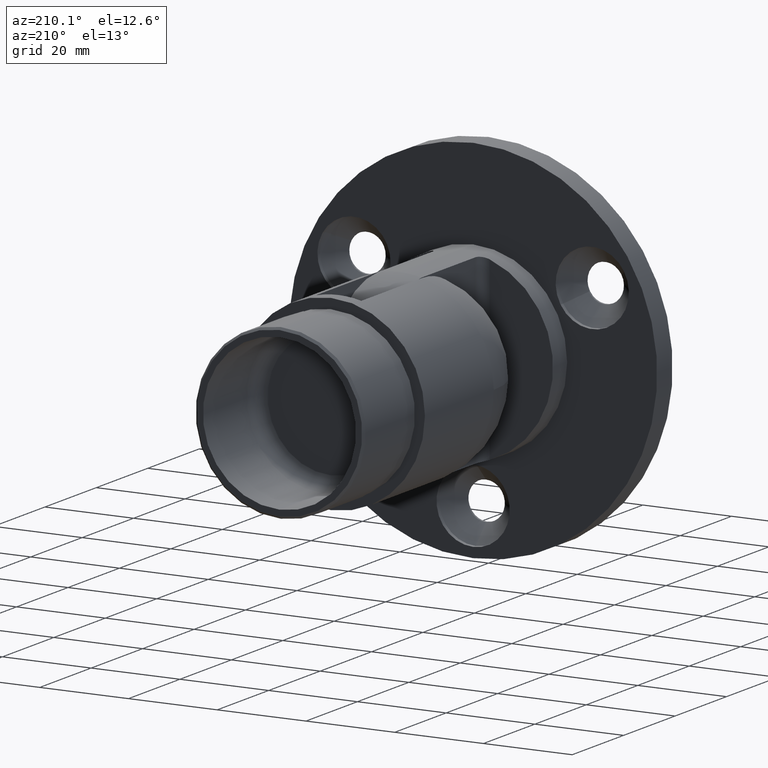
[diagram: clean part render]
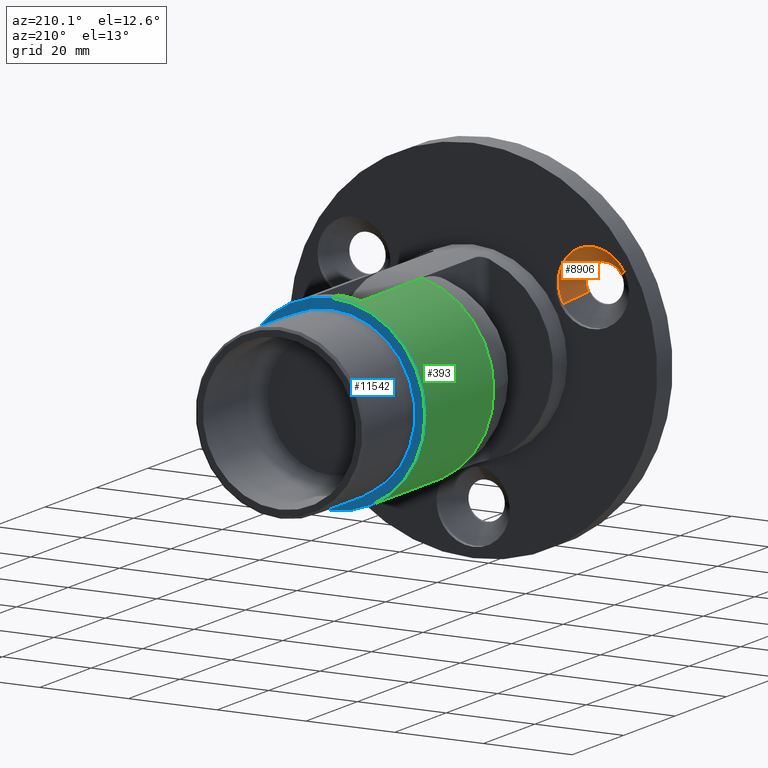
[diagram: same view with three faces highlighted in distinct colors, each labeled with its STEP entity id]
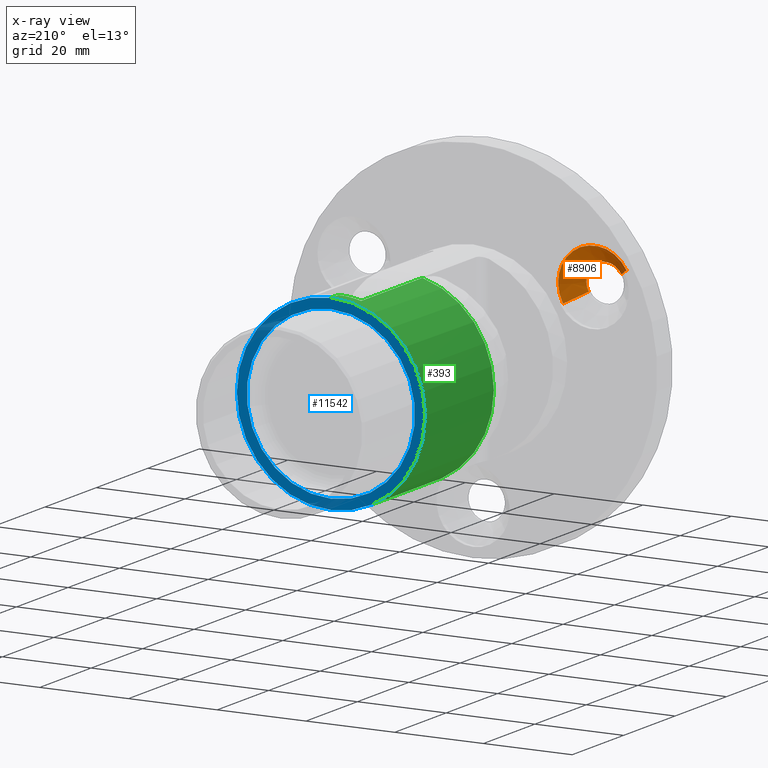
[diagram: x-ray of the same camera — body ghosted, the three highlighted faces saturated]
A machine part, auxiliary view with three faces highlighted in distinct colors.
The next image is the same camera in x-ray (body ghosted, the three faces saturated) — at least one of them is partly hidden behind the body in this view.
Their STEP definitions:

[orange] entity #8906 — the highlighted conical surface has half-angle 45 deg.
#916 = DIRECTION ( 'NONE',  ( 0.000000000000000000, 1.000000000000000000, 0.000000000000000000 ) ) ;
#1327 = CARTESIAN_POINT ( 'NONE',  ( -23.16617955123385997, 0.9999999999999991118, 13.37499999999978506 ) ) ;
#1413 = ORIENTED_EDGE ( 'NONE', *, *, #11286, .F. ) ;
#1791 = LINE ( 'NONE', #16002, #6210 ) ;
#3004 = CARTESIAN_POINT ( 'NONE',  ( -26.84678751731773971, 5.000000000000000000, 15.49999999999974953 ) ) ;
#3200 = AXIS2_PLACEMENT_3D ( 'NONE', #21550, #12831, #7497 ) ;
#4235 = DIRECTION ( 'NONE',  ( 0.8660254037844431485, 0.000000000000000000, -0.4999999999999920064 ) ) ;
#4389 = VERTEX_POINT ( 'NONE', #4603 ) ;
#4603 = CARTESIAN_POINT ( 'NONE',  ( -19.70207793609608515, 5.000000000000000000, 11.37499999999981526 ) ) ;
#5557 = DIRECTION ( 'NONE',  ( 0.6123724356957978010, 0.7071067811865474617, -0.3535533905932681242 ) ) ;
#5809 = AXIS2_PLACEMENT_3D ( 'NONE', #3004, #22034, #15105 ) ;
#6210 = VECTOR ( 'NONE', #8874, 1000.000000000000114 ) ;
#6330 = CARTESIAN_POINT ( 'NONE',  ( -33.99149709853939783, 5.000000000000000000, 19.62499999999968381 ) ) ;
#6861 = EDGE_LOOP ( 'NONE', ( #18527, #8484, #13698, #1413 ) ) ;
#7497 = DIRECTION ( 'NONE',  ( 0.8660254037844431485, 0.000000000000000000, -0.4999999999999920619 ) ) ;
#7640 = CARTESIAN_POINT ( 'NONE',  ( -30.52739548340162301, 0.9999999999999991118, 17.62499999999971223 ) ) ;
#8484 = ORIENTED_EDGE ( 'NONE', *, *, #20952, .T. ) ;
#8874 = DIRECTION ( 'NONE',  ( -0.6123724356957979120, 0.7071067811865474617, 0.3535533905932680687 ) ) ;
#8906 = ADVANCED_FACE ( 'NONE', ( #14672 ), #14129, .F. ) ;
#11169 = CARTESIAN_POINT ( 'NONE',  ( -26.84678751731773971, 5.000000000000000000, 15.49999999999974953 ) ) ;
#11286 = EDGE_CURVE ( 'NONE', #14812, #4389, #18478, .T. ) ;
#11392 = CIRCLE ( 'NONE', #3200, 4.249999999999998224 ) ;
#12831 = DIRECTION ( 'NONE',  ( 0.000000000000000000, 1.000000000000000000, 0.000000000000000000 ) ) ;
#13561 = VECTOR ( 'NONE', #5557, 1000.000000000000114 ) ;
#13698 = ORIENTED_EDGE ( 'NONE', *, *, #19970, .T. ) ;
#13898 = CIRCLE ( 'NONE', #20465, 8.250000000000000000 ) ;
#14129 = CONICAL_SURFACE ( 'NONE', #5809, 8.250000000000000000, 0.7853981633974483900 ) ;
#14672 = FACE_OUTER_BOUND ( 'NONE', #6861, .T. ) ;
#14812 = VERTEX_POINT ( 'NONE', #1327 ) ;
#15105 = DIRECTION ( 'NONE',  ( 0.8660254037844431485, 0.000000000000000000, -0.4999999999999920064 ) ) ;
#16002 = CARTESIAN_POINT ( 'NONE',  ( -33.99149709853939783, 5.000000000000000000, 19.62499999999968381 ) ) ;
#17907 = VERTEX_POINT ( 'NONE', #7640 ) ;
#18301 = VERTEX_POINT ( 'NONE', #6330 ) ;
#18478 = LINE ( 'NONE', #21190, #13561 ) ;
#18527 = ORIENTED_EDGE ( 'NONE', *, *, #20134, .F. ) ;
#19970 = EDGE_CURVE ( 'NONE', #18301, #4389, #13898, .T. ) ;
#20134 = EDGE_CURVE ( 'NONE', #17907, #14812, #11392, .T. ) ;
#20465 = AXIS2_PLACEMENT_3D ( 'NONE', #11169, #916, #4235 ) ;
#20952 = EDGE_CURVE ( 'NONE', #17907, #18301, #1791, .T. ) ;
#21190 = CARTESIAN_POINT ( 'NONE',  ( -19.70207793609608515, 5.000000000000000000, 11.37499999999981526 ) ) ;
#21550 = CARTESIAN_POINT ( 'NONE',  ( -26.84678751731773971, 0.9999999999999991118, 15.49999999999974953 ) ) ;
#22034 = DIRECTION ( 'NONE',  ( 0.000000000000000000, 1.000000000000000000, 0.000000000000000000 ) ) ;

[blue] entity #11542 — the highlighted planar face has unit normal (0, 1, 0).
#1105 = ORIENTED_EDGE ( 'NONE', *, *, #13216, .F. ) ;
#1797 = ORIENTED_EDGE ( 'NONE', *, *, #20656, .F. ) ;
#3454 = DIRECTION ( 'NONE',  ( 0.000000000000000000, 0.000000000000000000, -1.000000000000000000 ) ) ;
#4303 = DIRECTION ( 'NONE',  ( 0.000000000000000000, 1.000000000000000000, 0.000000000000000000 ) ) ;
#4486 = DIRECTION ( 'NONE',  ( -0.000000000000000000, -1.000000000000000000, -0.000000000000000000 ) ) ;
#5132 = CIRCLE ( 'NONE', #14641, 21.19999999999999929 ) ;
#5328 = VERTEX_POINT ( 'NONE', #10164 ) ;
#6087 = ORIENTED_EDGE ( 'NONE', *, *, #12486, .F. ) ;
#6405 = AXIS2_PLACEMENT_3D ( 'NONE', #13886, #6783, #18982 ) ;
#6783 = DIRECTION ( 'NONE',  ( -0.000000000000000000, -1.000000000000000000, -0.000000000000000000 ) ) ;
#6862 = VERTEX_POINT ( 'NONE', #22643 ) ;
#8035 = CIRCLE ( 'NONE', #14025, 18.94999999999999929 ) ;
#8426 = DIRECTION ( 'NONE',  ( 0.000000000000000000, 0.000000000000000000, 1.000000000000000000 ) ) ;
#9662 = CARTESIAN_POINT ( 'NONE',  ( 0.000000000000000000, 48.00000000000001421, 0.000000000000000000 ) ) ;
#10164 = CARTESIAN_POINT ( 'NONE',  ( 0.000000000000000000, 48.00000000000001421, -18.94999999999999929 ) ) ;
#10761 = CARTESIAN_POINT ( 'NONE',  ( 0.000000000000000000, 48.00000000000001421, 0.000000000000000000 ) ) ;
#11465 = DIRECTION ( 'NONE',  ( 0.000000000000000000, -0.000000000000000000, 1.000000000000000000 ) ) ;
#11542 = ADVANCED_FACE ( 'NONE', ( #18197, #11631 ), #18505, .T. ) ;
#11549 = DIRECTION ( 'NONE',  ( 0.000000000000000000, 1.000000000000000000, 0.000000000000000000 ) ) ;
#11631 = FACE_OUTER_BOUND ( 'NONE', #14234, .T. ) ;
#12140 = CARTESIAN_POINT ( 'NONE',  ( 0.000000000000000000, 48.00000000000001421, -21.19999999999999929 ) ) ;
#12486 = EDGE_CURVE ( 'NONE', #16115, #6862, #17082, .T. ) ;
#13216 = EDGE_CURVE ( 'NONE', #17477, #5328, #8035, .T. ) ;
#13423 = CIRCLE ( 'NONE', #13599, 18.94999999999999929 ) ;
#13599 = AXIS2_PLACEMENT_3D ( 'NONE', #10761, #4303, #20004 ) ;
#13886 = CARTESIAN_POINT ( 'NONE',  ( 0.000000000000000000, 48.00000000000001421, 0.000000000000000000 ) ) ;
#14025 = AXIS2_PLACEMENT_3D ( 'NONE', #20092, #20638, #8426 ) ;
#14234 = EDGE_LOOP ( 'NONE', ( #6087, #1797 ) ) ;
#14641 = AXIS2_PLACEMENT_3D ( 'NONE', #9662, #4486, #3454 ) ;
#15366 = EDGE_LOOP ( 'NONE', ( #17225, #1105 ) ) ;
#15634 = AXIS2_PLACEMENT_3D ( 'NONE', #20245, #11549, #11465 ) ;
#16115 = VERTEX_POINT ( 'NONE', #12140 ) ;
#17082 = CIRCLE ( 'NONE', #6405, 21.19999999999999929 ) ;
#17225 = ORIENTED_EDGE ( 'NONE', *, *, #19024, .F. ) ;
#17477 = VERTEX_POINT ( 'NONE', #20886 ) ;
#18197 = FACE_BOUND ( 'NONE', #15366, .T. ) ;
#18505 = PLANE ( 'NONE',  #15634 ) ;
#18982 = DIRECTION ( 'NONE',  ( 0.000000000000000000, 0.000000000000000000, -1.000000000000000000 ) ) ;
#19024 = EDGE_CURVE ( 'NONE', #5328, #17477, #13423, .T. ) ;
#20004 = DIRECTION ( 'NONE',  ( 0.000000000000000000, 0.000000000000000000, 1.000000000000000000 ) ) ;
#20092 = CARTESIAN_POINT ( 'NONE',  ( 0.000000000000000000, 48.00000000000001421, 0.000000000000000000 ) ) ;
#20245 = CARTESIAN_POINT ( 'NONE',  ( 0.000000000000000000, 48.00000000000001421, 0.000000000000000000 ) ) ;
#20638 = DIRECTION ( 'NONE',  ( 0.000000000000000000, 1.000000000000000000, 0.000000000000000000 ) ) ;
#20656 = EDGE_CURVE ( 'NONE', #6862, #16115, #5132, .T. ) ;
#20886 = CARTESIAN_POINT ( 'NONE',  ( 2.320705684384234292E-15, 48.00000000000001421, 18.94999999999999929 ) ) ;
#22643 = CARTESIAN_POINT ( 'NONE',  ( 2.596251214192388770E-15, 48.00000000000001421, 21.19999999999999929 ) ) ;

[green] entity #393 — the highlighted cylindrical surface (partial cylindrical patch) has radius 21.2 mm, axis along (-0, -1, -0).
#63 = ORIENTED_EDGE ( 'NONE', *, *, #3544, .T. ) ;
#148 = CIRCLE ( 'NONE', #18440, 21.20000000000000284 ) ;
#347 = ORIENTED_EDGE ( 'NONE', *, *, #18944, .F. ) ;
#393 = ADVANCED_FACE ( 'NONE', ( #9924 ), #18679, .T. ) ;
#1260 = CIRCLE ( 'NONE', #12262, 21.20000000000000284 ) ;
#1582 = VERTEX_POINT ( 'NONE', #22064 ) ;
#1685 = CARTESIAN_POINT ( 'NONE',  ( 0.000000000000000000, 0.000000000000000000, 0.000000000000000000 ) ) ;
#2374 = ORIENTED_EDGE ( 'NONE', *, *, #11561, .F. ) ;
#2730 = LINE ( 'NONE', #17253, #18586 ) ;
#3454 = DIRECTION ( 'NONE',  ( 0.000000000000000000, 0.000000000000000000, -1.000000000000000000 ) ) ;
#3544 = EDGE_CURVE ( 'NONE', #16115, #12984, #2730, .T. ) ;
#4250 = ORIENTED_EDGE ( 'NONE', *, *, #7285, .F. ) ;
#4298 = CARTESIAN_POINT ( 'NONE',  ( 2.596251214192389164E-15, 45.00000000000000000, 21.20000000000000284 ) ) ;
#4486 = DIRECTION ( 'NONE',  ( -0.000000000000000000, -1.000000000000000000, -0.000000000000000000 ) ) ;
#5132 = CIRCLE ( 'NONE', #14641, 21.19999999999999929 ) ;
#5387 = CIRCLE ( 'NONE', #5534, 21.20000000000000284 ) ;
#5534 = AXIS2_PLACEMENT_3D ( 'NONE', #11434, #13213, #14899 ) ;
#6035 = EDGE_CURVE ( 'NONE', #6862, #14809, #14495, .T. ) ;
#6387 = CARTESIAN_POINT ( 'NONE',  ( -5.099999999999993427, 0.000000000000000000, -20.57741480361418596 ) ) ;
#6676 = ORIENTED_EDGE ( 'NONE', *, *, #20980, .F. ) ;
#6862 = VERTEX_POINT ( 'NONE', #22643 ) ;
#7285 = EDGE_CURVE ( 'NONE', #1582, #16345, #19612, .T. ) ;
#7370 = ORIENTED_EDGE ( 'NONE', *, *, #6035, .F. ) ;
#8124 = VERTEX_POINT ( 'NONE', #20405 ) ;
#8283 = CARTESIAN_POINT ( 'NONE',  ( -5.099999999999993427, 0.000000000000000000, 20.57741480361418596 ) ) ;
#8879 = VECTOR ( 'NONE', #18280, 1000.000000000000000 ) ;
#9063 = CARTESIAN_POINT ( 'NONE',  ( 0.000000000000000000, 45.00000000000000000, -21.20000000000000284 ) ) ;
#9662 = CARTESIAN_POINT ( 'NONE',  ( 0.000000000000000000, 48.00000000000001421, 0.000000000000000000 ) ) ;
#9672 = CARTESIAN_POINT ( 'NONE',  ( 2.596251214192389164E-15, 0.000000000000000000, 21.20000000000000284 ) ) ;
#9924 = FACE_OUTER_BOUND ( 'NONE', #10413, .T. ) ;
#10413 = EDGE_LOOP ( 'NONE', ( #7370, #21813, #63, #18345, #2374, #6676, #16095, #4250, #347 ) ) ;
#10583 = VECTOR ( 'NONE', #22266, 1000.000000000000000 ) ;
#10876 = EDGE_CURVE ( 'NONE', #17879, #12984, #5387, .T. ) ;
#10934 = CARTESIAN_POINT ( 'NONE',  ( 0.000000000000000000, 21.20000000000000639, 0.000000000000000000 ) ) ;
#11244 = DIRECTION ( 'NONE',  ( -0.000000000000000000, -1.000000000000000000, -0.000000000000000000 ) ) ;
#11434 = CARTESIAN_POINT ( 'NONE',  ( 0.000000000000000000, 45.00000000000000000, 0.000000000000000000 ) ) ;
#11521 = AXIS2_PLACEMENT_3D ( 'NONE', #1685, #15555, #19051 ) ;
#11561 = EDGE_CURVE ( 'NONE', #8124, #17879, #12436, .T. ) ;
#12140 = CARTESIAN_POINT ( 'NONE',  ( 0.000000000000000000, 48.00000000000001421, -21.19999999999999929 ) ) ;
#12262 = AXIS2_PLACEMENT_3D ( 'NONE', #21865, #11244, #18358 ) ;
#12436 = LINE ( 'NONE', #6387, #8879 ) ;
#12851 = DIRECTION ( 'NONE',  ( 0.000000000000000000, 0.000000000000000000, -1.000000000000000000 ) ) ;
#12984 = VERTEX_POINT ( 'NONE', #9063 ) ;
#13213 = DIRECTION ( 'NONE',  ( 0.000000000000000000, -1.000000000000000000, -0.000000000000000000 ) ) ;
#13679 = VECTOR ( 'NONE', #16787, 1000.000000000000000 ) ;
#14342 = AXIS2_PLACEMENT_3D ( 'NONE', #16446, #21787, #19538 ) ;
#14407 = DIRECTION ( 'NONE',  ( -0.000000000000000000, -1.000000000000000000, -0.000000000000000000 ) ) ;
#14495 = LINE ( 'NONE', #9672, #13679 ) ;
#14641 = AXIS2_PLACEMENT_3D ( 'NONE', #9662, #4486, #3454 ) ;
#14809 = VERTEX_POINT ( 'NONE', #4298 ) ;
#14899 = DIRECTION ( 'NONE',  ( 5.329070518200752183E-15, 0.000000000000000000, 1.000000000000000000 ) ) ;
#15555 = DIRECTION ( 'NONE',  ( -0.000000000000000000, -1.000000000000000000, -0.000000000000000000 ) ) ;
#16095 = ORIENTED_EDGE ( 'NONE', *, *, #19961, .F. ) ;
#16115 = VERTEX_POINT ( 'NONE', #12140 ) ;
#16345 = VERTEX_POINT ( 'NONE', #18165 ) ;
#16446 = CARTESIAN_POINT ( 'NONE',  ( 0.000000000000000000, 45.00000000000000000, 0.000000000000000000 ) ) ;
#16787 = DIRECTION ( 'NONE',  ( -0.000000000000000000, -1.000000000000000000, -0.000000000000000000 ) ) ;
#17253 = CARTESIAN_POINT ( 'NONE',  ( 0.000000000000000000, 0.000000000000000000, -21.20000000000000284 ) ) ;
#17879 = VERTEX_POINT ( 'NONE', #21627 ) ;
#18000 = VERTEX_POINT ( 'NONE', #22588 ) ;
#18165 = CARTESIAN_POINT ( 'NONE',  ( -5.099999999999993427, 21.20000000000000639, 20.57741480361418596 ) ) ;
#18280 = DIRECTION ( 'NONE',  ( 0.000000000000000000, 1.000000000000000000, 0.000000000000000000 ) ) ;
#18345 = ORIENTED_EDGE ( 'NONE', *, *, #10876, .F. ) ;
#18358 = DIRECTION ( 'NONE',  ( 0.000000000000000000, 0.000000000000000000, -1.000000000000000000 ) ) ;
#18440 = AXIS2_PLACEMENT_3D ( 'NONE', #10934, #14407, #12851 ) ;
#18586 = VECTOR ( 'NONE', #18925, 1000.000000000000000 ) ;
#18679 = CYLINDRICAL_SURFACE ( 'NONE', #11521, 21.20000000000000284 ) ;
#18925 = DIRECTION ( 'NONE',  ( -0.000000000000000000, -1.000000000000000000, -0.000000000000000000 ) ) ;
#18944 = EDGE_CURVE ( 'NONE', #14809, #1582, #19674, .T. ) ;
#19051 = DIRECTION ( 'NONE',  ( 0.000000000000000000, 0.000000000000000000, -1.000000000000000000 ) ) ;
#19538 = DIRECTION ( 'NONE',  ( 0.000000000000000000, 0.000000000000000000, 1.000000000000000000 ) ) ;
#19612 = LINE ( 'NONE', #8283, #10583 ) ;
#19674 = CIRCLE ( 'NONE', #14342, 21.20000000000000284 ) ;
#19961 = EDGE_CURVE ( 'NONE', #16345, #18000, #1260, .T. ) ;
#20405 = CARTESIAN_POINT ( 'NONE',  ( -5.099999999999993427, 21.20000000000000639, -20.57741480361418596 ) ) ;
#20656 = EDGE_CURVE ( 'NONE', #6862, #16115, #5132, .T. ) ;
#20980 = EDGE_CURVE ( 'NONE', #18000, #8124, #148, .T. ) ;
#21627 = CARTESIAN_POINT ( 'NONE',  ( -5.099999999999993427, 45.00000000000000000, -20.57741480361418596 ) ) ;
#21787 = DIRECTION ( 'NONE',  ( 0.000000000000000000, -1.000000000000000000, -0.000000000000000000 ) ) ;
#21813 = ORIENTED_EDGE ( 'NONE', *, *, #20656, .T. ) ;
#21865 = CARTESIAN_POINT ( 'NONE',  ( 0.000000000000000000, 21.20000000000000639, 0.000000000000000000 ) ) ;
#22064 = CARTESIAN_POINT ( 'NONE',  ( -5.099999999999993427, 45.00000000000000000, 20.57741480361418596 ) ) ;
#22266 = DIRECTION ( 'NONE',  ( -0.000000000000000000, -1.000000000000000000, -0.000000000000000000 ) ) ;
#22588 = CARTESIAN_POINT ( 'NONE',  ( -21.20000000000000284, 21.20000000000000639, 0.000000000000000000 ) ) ;
#22643 = CARTESIAN_POINT ( 'NONE',  ( 2.596251214192388770E-15, 48.00000000000001421, 21.19999999999999929 ) ) ;